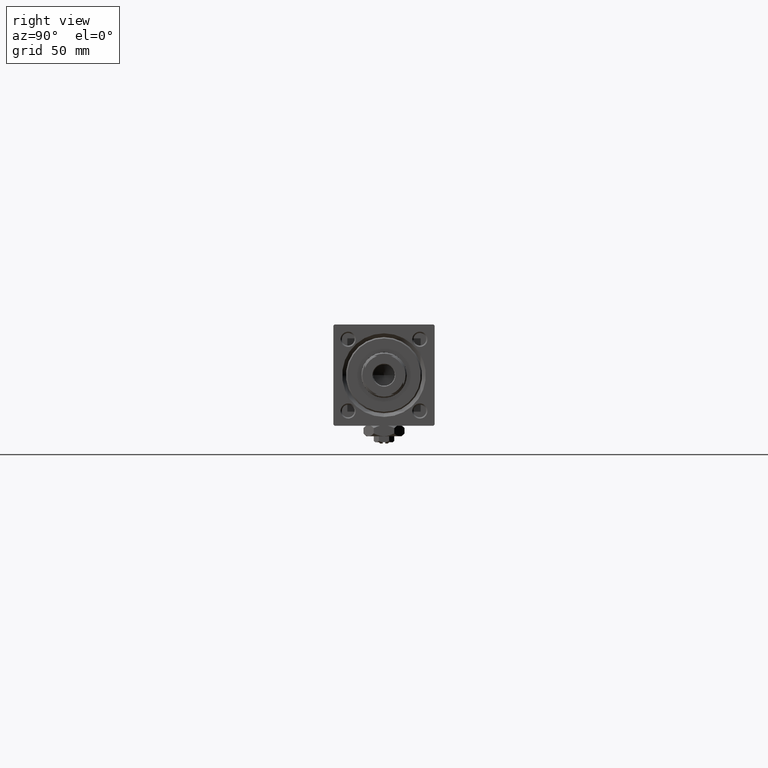
[diagram: clean part render]
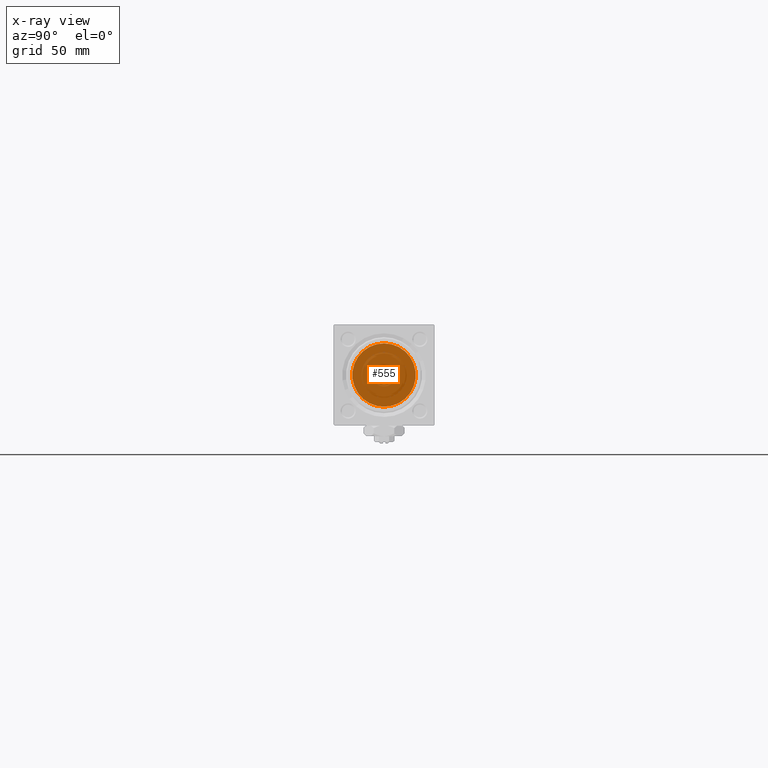
[diagram: x-ray — body ghosted, one internal face saturated and labeled with its STEP entity id]
A machine part, right view, then the same camera in x-ray: the body is ghosted and one INTERNAL B-rep face — a face not visible from any outside direction — is saturated and labeled: STEP entity #555.
In plain terms, the highlighted planar face has unit normal (-1, 0, 0).
Its self-contained STEP definition (entity closure, byte-faithful):
#139 = DIRECTION ( 'NONE',  ( 1.000000000000000000, 0.000000000000000000, 0.000000000000000000 ) ) ;
#555 = ADVANCED_FACE ( 'NONE', ( #30376, #46448 ), #34850, .F. ) ;
#4013 = DIRECTION ( 'NONE',  ( 0.000000000000000000, 0.000000000000000000, 1.000000000000000000 ) ) ;
#8505 = DIRECTION ( 'NONE',  ( 0.000000000000000000, 0.000000000000000000, -1.000000000000000000 ) ) ;
#10400 = EDGE_CURVE ( 'NONE', #21578, #47431, #45238, .T. ) ;
#10873 = EDGE_CURVE ( 'NONE', #39088, #34900, #52084, .T. ) ;
#15050 = AXIS2_PLACEMENT_3D ( 'NONE', #41423, #45098, #8505 ) ;
#17469 = AXIS2_PLACEMENT_3D ( 'NONE', #20172, #139, #20433 ) ;
#20172 = CARTESIAN_POINT ( 'NONE',  ( 24.00000000000000000, -2.602085213965210642E-15, 0.000000000000000000 ) ) ;
#20414 = DIRECTION ( 'NONE',  ( -1.000000000000000000, -0.000000000000000000, -0.000000000000000000 ) ) ;
#20433 = DIRECTION ( 'NONE',  ( 0.000000000000000000, 0.000000000000000000, -1.000000000000000000 ) ) ;
#21578 = VERTEX_POINT ( 'NONE', #26647 ) ;
#22622 = ORIENTED_EDGE ( 'NONE', *, *, #10873, .T. ) ;
#23941 = EDGE_LOOP ( 'NONE', ( #45718, #22622 ) ) ;
#23948 = AXIS2_PLACEMENT_3D ( 'NONE', #26948, #42247, #42502 ) ;
#25870 = EDGE_CURVE ( 'NONE', #34900, #39088, #32147, .T. ) ;
#26647 = CARTESIAN_POINT ( 'NONE',  ( 24.00000000000000000, -1.071276715031019515E-15, -12.49999999999999645 ) ) ;
#26877 = AXIS2_PLACEMENT_3D ( 'NONE', #32699, #40093, #4013 ) ;
#26948 = CARTESIAN_POINT ( 'NONE',  ( 24.00000000000000000, 0.000000000000000000, 0.000000000000000000 ) ) ;
#27416 = CARTESIAN_POINT ( 'NONE',  ( 24.00000000000000000, -2.602085213965210642E-15, 12.49999999999999645 ) ) ;
#28207 = CARTESIAN_POINT ( 'NONE',  ( 23.99999999999999289, 0.000000000000000000, 3.500000000000000000 ) ) ;
#28864 = CARTESIAN_POINT ( 'NONE',  ( 23.99999999999999289, 4.286263797015736595E-16, -3.500000000000000000 ) ) ;
#30376 = FACE_BOUND ( 'NONE', #23941, .T. ) ;
#32147 = CIRCLE ( 'NONE', #33017, 3.500000000000000000 ) ;
#32699 = CARTESIAN_POINT ( 'NONE',  ( 23.99999999999999289, 0.000000000000000000, 0.000000000000000000 ) ) ;
#33017 = AXIS2_PLACEMENT_3D ( 'NONE', #48321, #20414, #44642 ) ;
#34850 = PLANE ( 'NONE',  #23948 ) ;
#34900 = VERTEX_POINT ( 'NONE', #28207 ) ;
#39088 = VERTEX_POINT ( 'NONE', #28864 ) ;
#40093 = DIRECTION ( 'NONE',  ( -1.000000000000000000, -0.000000000000000000, -0.000000000000000000 ) ) ;
#41423 = CARTESIAN_POINT ( 'NONE',  ( 24.00000000000000000, -2.602085213965210642E-15, 0.000000000000000000 ) ) ;
#42247 = DIRECTION ( 'NONE',  ( -1.000000000000000000, 0.000000000000000000, -0.000000000000000000 ) ) ;
#42502 = DIRECTION ( 'NONE',  ( -0.000000000000000000, 0.000000000000000000, 1.000000000000000000 ) ) ;
#42800 = EDGE_LOOP ( 'NONE', ( #46539, #43185 ) ) ;
#43185 = ORIENTED_EDGE ( 'NONE', *, *, #10400, .T. ) ;
#44642 = DIRECTION ( 'NONE',  ( 0.000000000000000000, 0.000000000000000000, 1.000000000000000000 ) ) ;
#45098 = DIRECTION ( 'NONE',  ( 1.000000000000000000, 0.000000000000000000, 0.000000000000000000 ) ) ;
#45238 = CIRCLE ( 'NONE', #17469, 12.49999999999999645 ) ;
#45718 = ORIENTED_EDGE ( 'NONE', *, *, #25870, .T. ) ;
#46187 = CIRCLE ( 'NONE', #15050, 12.49999999999999645 ) ;
#46448 = FACE_OUTER_BOUND ( 'NONE', #42800, .T. ) ;
#46539 = ORIENTED_EDGE ( 'NONE', *, *, #47164, .T. ) ;
#47164 = EDGE_CURVE ( 'NONE', #47431, #21578, #46187, .T. ) ;
#47431 = VERTEX_POINT ( 'NONE', #27416 ) ;
#48321 = CARTESIAN_POINT ( 'NONE',  ( 23.99999999999999289, 0.000000000000000000, 0.000000000000000000 ) ) ;
#52084 = CIRCLE ( 'NONE', #26877, 3.500000000000000000 ) ;